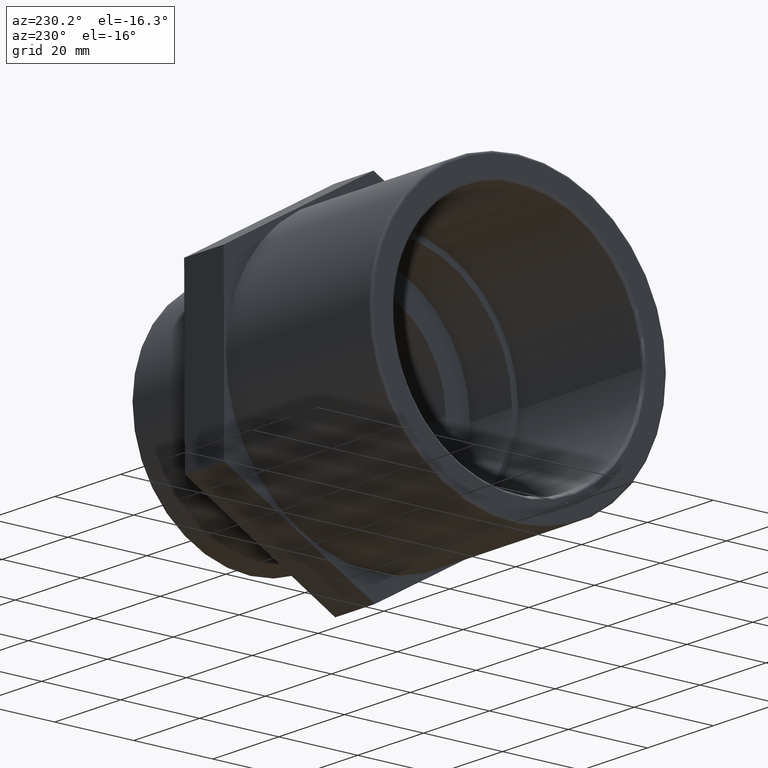
[diagram: clean part render]
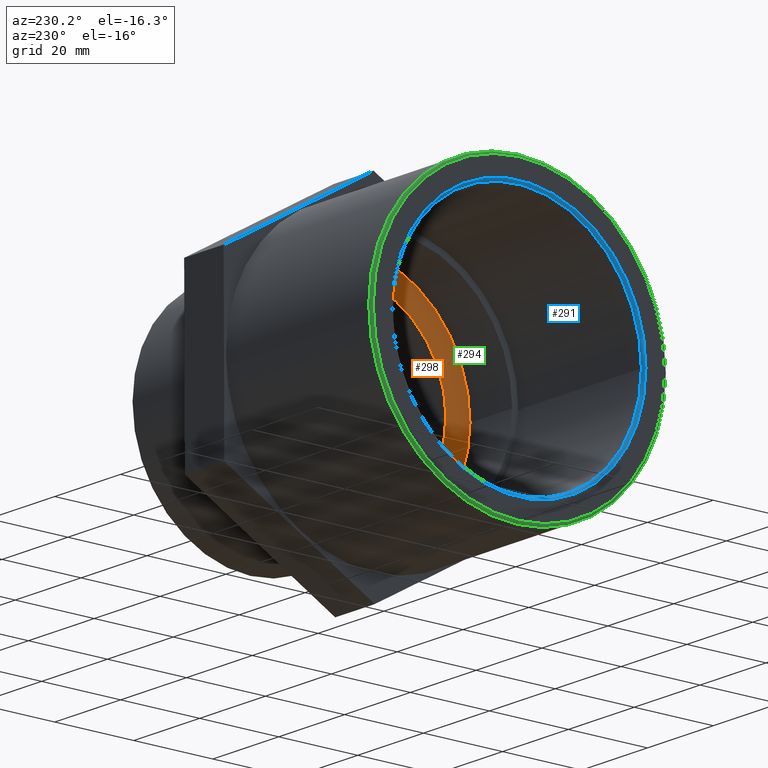
[diagram: same view with three faces highlighted in distinct colors, each labeled with its STEP entity id]
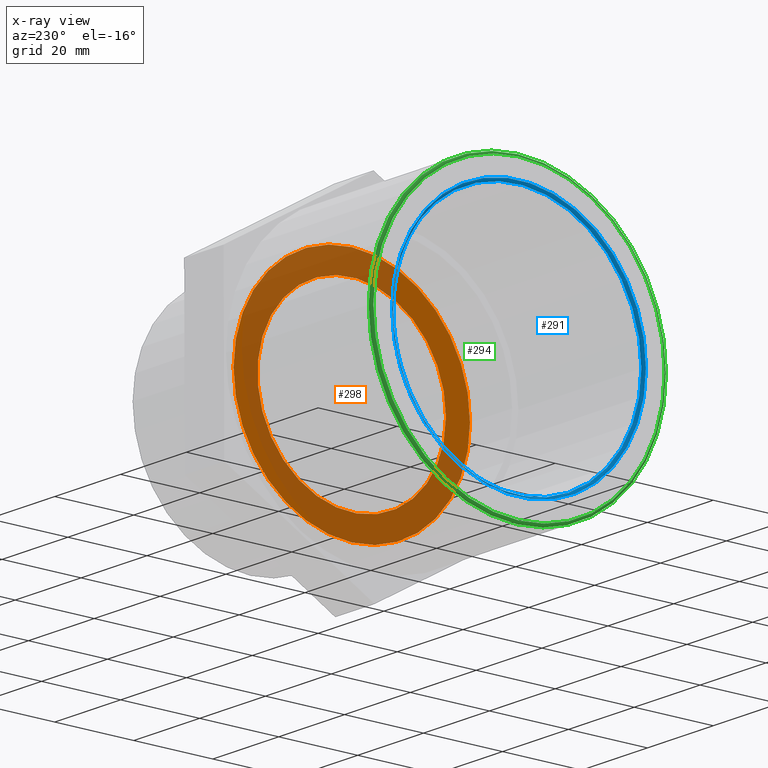
[diagram: x-ray of the same camera — body ghosted, the three highlighted faces saturated]
A machine part, auxiliary view with three faces highlighted in distinct colors.
The next image is the same camera in x-ray (body ghosted, the three faces saturated) — at least one of them is partly hidden behind the body in this view.
Their STEP definitions:

[orange] entity #298 — the highlighted planar face has unit normal (-1, -0, 0).
#32=FACE_BOUND('',#105,.T.);
#38=CIRCLE('',#315,23.8456);
#48=CIRCLE('',#334,29.925);
#71=FACE_OUTER_BOUND('',#104,.T.);
#104=EDGE_LOOP('',(#252));
#105=EDGE_LOOP('',(#253));
#161=VERTEX_POINT('',#474);
#171=VERTEX_POINT('',#503);
#193=EDGE_CURVE('',#161,#161,#38,.T.);
#203=EDGE_CURVE('',#171,#171,#48,.T.);
#252=ORIENTED_EDGE('',*,*,#203,.T.);
#253=ORIENTED_EDGE('',*,*,#193,.F.);
#277=PLANE('',#335);
#298=ADVANCED_FACE('',(#71,#32),#277,.T.);
#315=AXIS2_PLACEMENT_3D('',#475,#382,#383);
#334=AXIS2_PLACEMENT_3D('',#504,#420,#421);
#335=AXIS2_PLACEMENT_3D('',#505,#422,#423);
#382=DIRECTION('center_axis',(-1.,-6.73555739531044E-16,0.));
#383=DIRECTION('ref_axis',(0.,0.,1.));
#420=DIRECTION('center_axis',(-1.,-6.73555739531044E-16,0.));
#421=DIRECTION('ref_axis',(0.,0.,1.));
#422=DIRECTION('center_axis',(-1.,-6.73555739531044E-16,0.));
#423=DIRECTION('ref_axis',(0.,0.,1.));
#474=CARTESIAN_POINT('',(9.80000000000001,-23.8456,0.));
#475=CARTESIAN_POINT('Origin',(9.8,1.41324240621605E-14,0.));
#503=CARTESIAN_POINT('',(9.80000000000001,-29.925,0.));
#504=CARTESIAN_POINT('Origin',(9.8,1.41324240621605E-14,0.));
#505=CARTESIAN_POINT('Origin',(9.80000000000001,-23.8456,0.));

[blue] entity #291 — the highlighted toroidal blend (fillet) surface has major radius 32.13 mm and minor (blend) radius 0.63 mm.
#25=FACE_BOUND('',#91,.T.);
#41=CIRCLE('',#321,32.13);
#42=CIRCLE('',#322,31.5);
#51=TOROIDAL_SURFACE('',#320,32.13,0.63);
#64=FACE_OUTER_BOUND('',#90,.T.);
#90=EDGE_LOOP('',(#238));
#91=EDGE_LOOP('',(#239));
#164=VERTEX_POINT('',#483);
#165=VERTEX_POINT('',#485);
#196=EDGE_CURVE('',#164,#164,#41,.T.);
#197=EDGE_CURVE('',#165,#165,#42,.T.);
#238=ORIENTED_EDGE('',*,*,#196,.T.);
#239=ORIENTED_EDGE('',*,*,#197,.T.);
#291=ADVANCED_FACE('',(#64,#25),#51,.T.);
#320=AXIS2_PLACEMENT_3D('',#482,#392,#393);
#321=AXIS2_PLACEMENT_3D('',#484,#394,#395);
#322=AXIS2_PLACEMENT_3D('',#486,#396,#397);
#392=DIRECTION('center_axis',(-1.,-6.73555739531044E-16,0.));
#393=DIRECTION('ref_axis',(0.,0.,1.));
#394=DIRECTION('center_axis',(-1.,-6.73555739531044E-16,0.));
#395=DIRECTION('ref_axis',(-6.73555739531044E-16,1.,6.12323399573677E-17));
#396=DIRECTION('center_axis',(1.,6.73555739531044E-16,0.));
#397=DIRECTION('ref_axis',(-6.74063979236703E-16,1.,6.12323399573677E-17));
#482=CARTESIAN_POINT('Origin',(-40.37,-1.9659867390112E-14,0.));
#483=CARTESIAN_POINT('',(-41.,-32.13,1.96739508283022E-15));
#484=CARTESIAN_POINT('Origin',(-41.,-2.00842075060166E-14,0.));
#485=CARTESIAN_POINT('',(-40.37,-31.5,-5.78645612597124E-15));
#486=CARTESIAN_POINT('Origin',(-40.37,-1.9659867390112E-14,0.));

[green] entity #294 — the highlighted toroidal blend (fillet) surface has major radius 36.87 mm and minor (blend) radius 0.63 mm.
#28=FACE_BOUND('',#97,.T.);
#43=CIRCLE('',#324,36.87);
#45=CIRCLE('',#328,37.5);
#52=TOROIDAL_SURFACE('',#327,36.87,0.63);
#67=FACE_OUTER_BOUND('',#96,.T.);
#96=EDGE_LOOP('',(#244));
#97=EDGE_LOOP('',(#245));
#166=VERTEX_POINT('',#488);
#168=VERTEX_POINT('',#494);
#198=EDGE_CURVE('',#166,#166,#43,.T.);
#200=EDGE_CURVE('',#168,#168,#45,.T.);
#244=ORIENTED_EDGE('',*,*,#200,.T.);
#245=ORIENTED_EDGE('',*,*,#198,.T.);
#294=ADVANCED_FACE('',(#67,#28),#52,.T.);
#324=AXIS2_PLACEMENT_3D('',#489,#400,#401);
#327=AXIS2_PLACEMENT_3D('',#493,#406,#407);
#328=AXIS2_PLACEMENT_3D('',#495,#408,#409);
#400=DIRECTION('center_axis',(1.,6.73555739531044E-16,0.));
#401=DIRECTION('ref_axis',(-6.73555739531044E-16,1.,6.12323399573677E-17));
#406=DIRECTION('center_axis',(-1.,-6.73555739531044E-16,0.));
#407=DIRECTION('ref_axis',(0.,0.,1.));
#408=DIRECTION('center_axis',(-1.,-6.73555739531044E-16,0.));
#409=DIRECTION('ref_axis',(-6.73535301605929E-16,1.,6.12323399573677E-17));
#488=CARTESIAN_POINT('',(-41.,-36.87,-6.77290912268444E-15));
#489=CARTESIAN_POINT('Origin',(-41.,-2.00842075060166E-14,0.));
#493=CARTESIAN_POINT('Origin',(-40.37,-1.9659867390112E-14,0.));
#494=CARTESIAN_POINT('',(-40.37,-37.5,2.29621274840129E-15));
#495=CARTESIAN_POINT('Origin',(-40.37,-1.9659867390112E-14,0.));